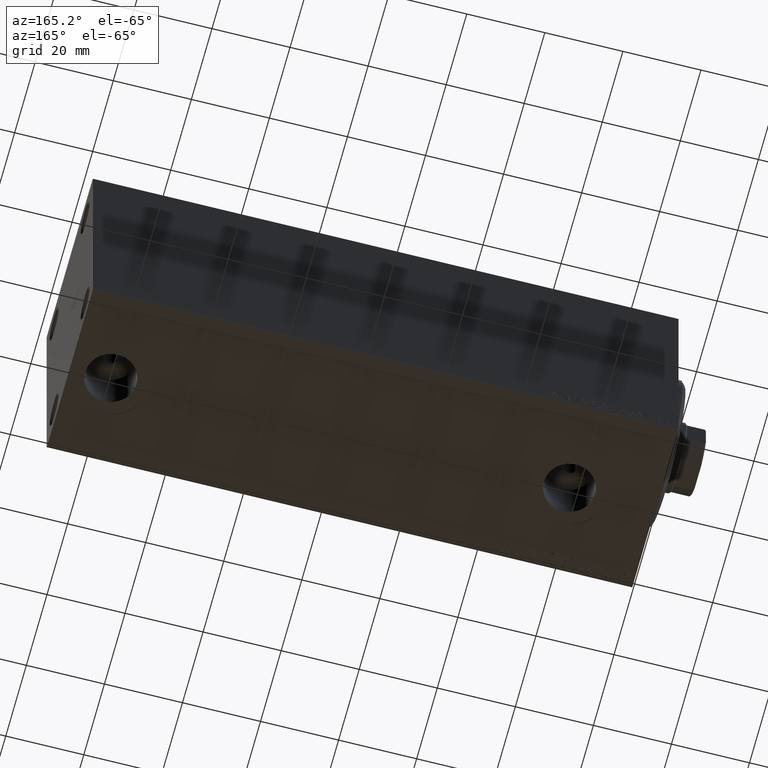
[diagram: clean part render]
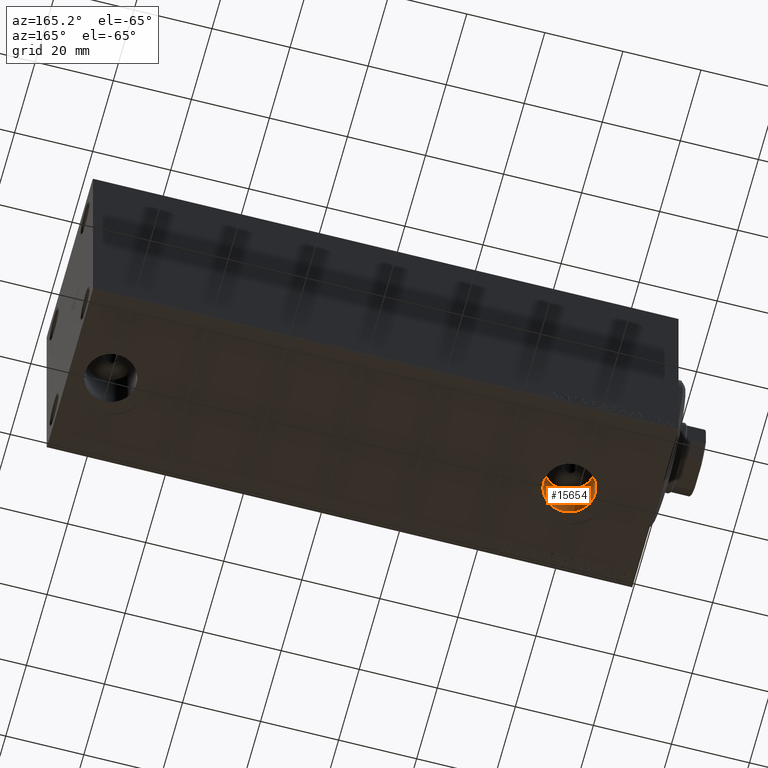
[diagram: same view with one face highlighted and labeled with its STEP entity id]
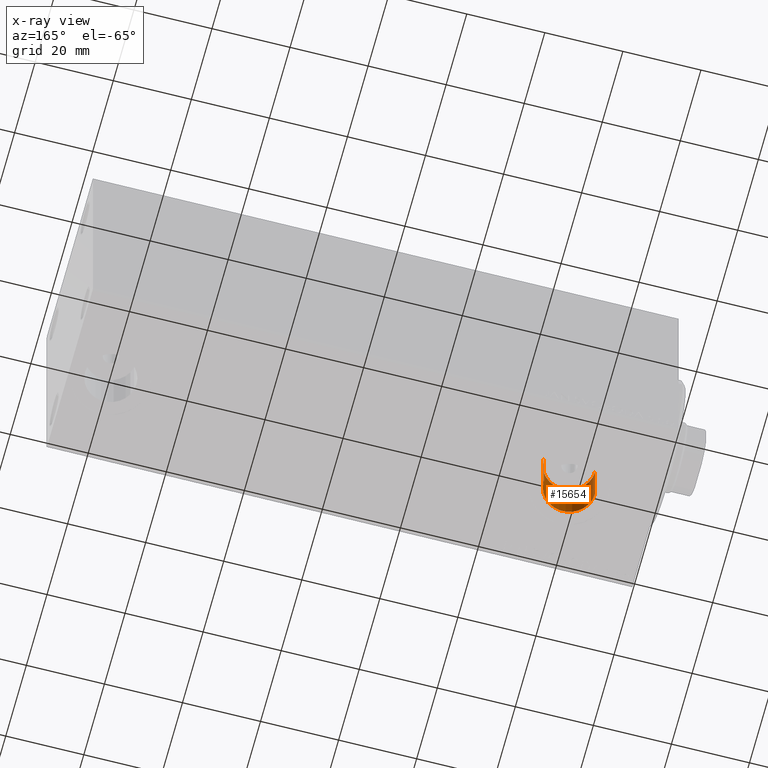
[diagram: x-ray of the same camera — body ghosted, the highlighted face saturated]
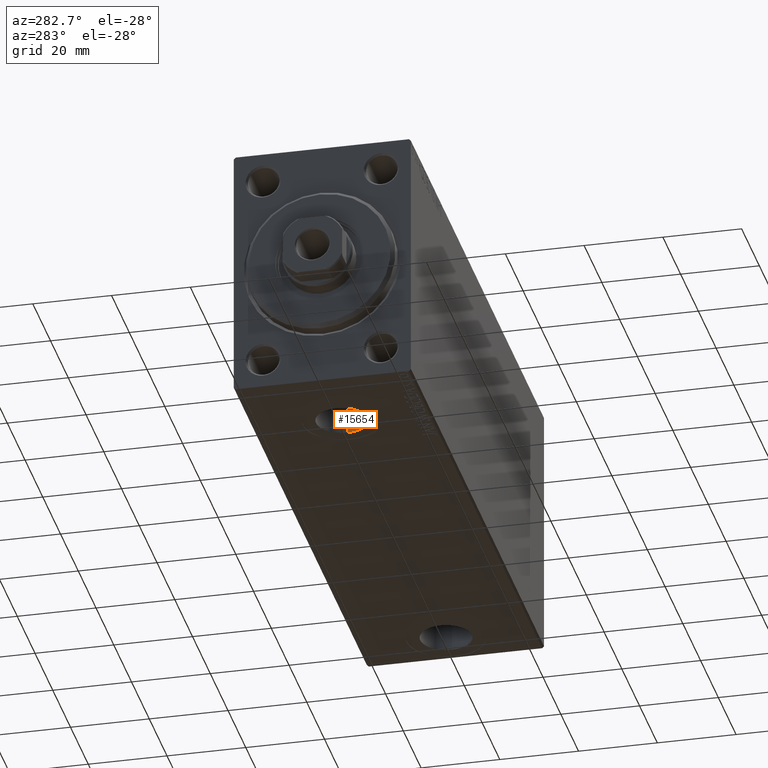
[diagram: same view with one face highlighted and labeled with its STEP entity id]
A machine part, auxiliary view. The second image highlights one B-rep face of the part: STEP entity #15654.
The next image is the same camera in x-ray: the body ghosted, the highlighted face saturated — about 0% of this face is hidden behind the body in this view.
A second angle (auxiliary view) of the same face is appended — the face is thin or edge-on in the first view.
In plain terms, the highlighted cylindrical surface (edge-blend (fillet) strip) has radius 6.58 mm, axis along (-0, -0, -1).
Its self-contained STEP definition (entity closure, byte-faithful):
#5931 = ORIENTED_EDGE ( 'NONE', *, *, #25309, .T. ) ;
#6667 = ORIENTED_EDGE ( 'NONE', *, *, #42962, .T. ) ;
#14227 = EDGE_CURVE ( 'NONE', #18917, #29976, #20951, .T. ) ;
#14746 = CIRCLE ( 'NONE', #40547, 6.580000000000002736 ) ;
#15060 = DIRECTION ( 'NONE',  ( -0.000000000000000000, -0.000000000000000000, -1.000000000000000000 ) ) ;
#15281 = FACE_OUTER_BOUND ( 'NONE', #27263, .T. ) ;
#15654 = ADVANCED_FACE ( 'NONE', ( #15281 ), #36049, .F. ) ;
#15989 = CARTESIAN_POINT ( 'NONE',  ( 15.41999999999999638, -2.910683231281019398E-15, -32.40000000000000568 ) ) ;
#18917 = VERTEX_POINT ( 'NONE', #36629 ) ;
#19219 = DIRECTION ( 'NONE',  ( -0.000000000000000000, -0.000000000000000000, -1.000000000000000000 ) ) ;
#19422 = DIRECTION ( 'NONE',  ( 0.000000000000000000, 0.000000000000000000, -1.000000000000000000 ) ) ;
#19452 = CARTESIAN_POINT ( 'NONE',  ( 28.58000000000000185, -2.104865637442060750E-15, -19.50000000000000355 ) ) ;
#20951 = LINE ( 'NONE', #42178, #37689 ) ;
#21757 = CARTESIAN_POINT ( 'NONE',  ( 22.00000000000000000, -2.910683231281019398E-15, -19.50000000000000355 ) ) ;
#22464 = LINE ( 'NONE', #19452, #26090 ) ;
#23124 = DIRECTION ( 'NONE',  ( 0.000000000000000000, 0.000000000000000000, -1.000000000000000000 ) ) ;
#24985 = DIRECTION ( 'NONE',  ( -1.000000000000000000, 0.000000000000000000, 0.000000000000000000 ) ) ;
#25014 = ORIENTED_EDGE ( 'NONE', *, *, #14227, .F. ) ;
#25309 = EDGE_CURVE ( 'NONE', #31386, #29976, #14746, .T. ) ;
#25454 = CARTESIAN_POINT ( 'NONE',  ( 28.58000000000000185, -2.104865637442060750E-15, -32.40000000000000568 ) ) ;
#26029 = EDGE_CURVE ( 'NONE', #34978, #18917, #42013, .T. ) ;
#26090 = VECTOR ( 'NONE', #19219, 1000.000000000000000 ) ;
#26362 = CARTESIAN_POINT ( 'NONE',  ( 22.00000000000000000, -2.910683231281019398E-15, -19.50000000000000355 ) ) ;
#27263 = EDGE_LOOP ( 'NONE', ( #35811, #6667, #5931, #25014 ) ) ;
#29976 = VERTEX_POINT ( 'NONE', #15989 ) ;
#31386 = VERTEX_POINT ( 'NONE', #25454 ) ;
#33714 = CARTESIAN_POINT ( 'NONE',  ( 22.00000000000000000, -2.910683231281019398E-15, -32.40000000000000568 ) ) ;
#34978 = VERTEX_POINT ( 'NONE', #44521 ) ;
#35811 = ORIENTED_EDGE ( 'NONE', *, *, #26029, .F. ) ;
#36049 = CYLINDRICAL_SURFACE ( 'NONE', #44273, 6.580000000000002736 ) ;
#36629 = CARTESIAN_POINT ( 'NONE',  ( 15.41999999999999638, -2.910683231281019398E-15, -19.50000000000000355 ) ) ;
#37413 = DIRECTION ( 'NONE',  ( -1.000000000000000000, 0.000000000000000000, 0.000000000000000000 ) ) ;
#37689 = VECTOR ( 'NONE', #45395, 1000.000000000000000 ) ;
#39813 = AXIS2_PLACEMENT_3D ( 'NONE', #26362, #23124, #37413 ) ;
#40547 = AXIS2_PLACEMENT_3D ( 'NONE', #33714, #19422, #44322 ) ;
#42013 = CIRCLE ( 'NONE', #39813, 6.580000000000002736 ) ;
#42178 = CARTESIAN_POINT ( 'NONE',  ( 15.41999999999999638, -2.910683231281019398E-15, -19.50000000000000355 ) ) ;
#42962 = EDGE_CURVE ( 'NONE', #34978, #31386, #22464, .T. ) ;
#44273 = AXIS2_PLACEMENT_3D ( 'NONE', #21757, #15060, #24985 ) ;
#44322 = DIRECTION ( 'NONE',  ( -1.000000000000000000, 0.000000000000000000, 0.000000000000000000 ) ) ;
#44521 = CARTESIAN_POINT ( 'NONE',  ( 28.58000000000000185, -2.104865637442060750E-15, -19.50000000000000355 ) ) ;
#45395 = DIRECTION ( 'NONE',  ( -0.000000000000000000, -0.000000000000000000, -1.000000000000000000 ) ) ;